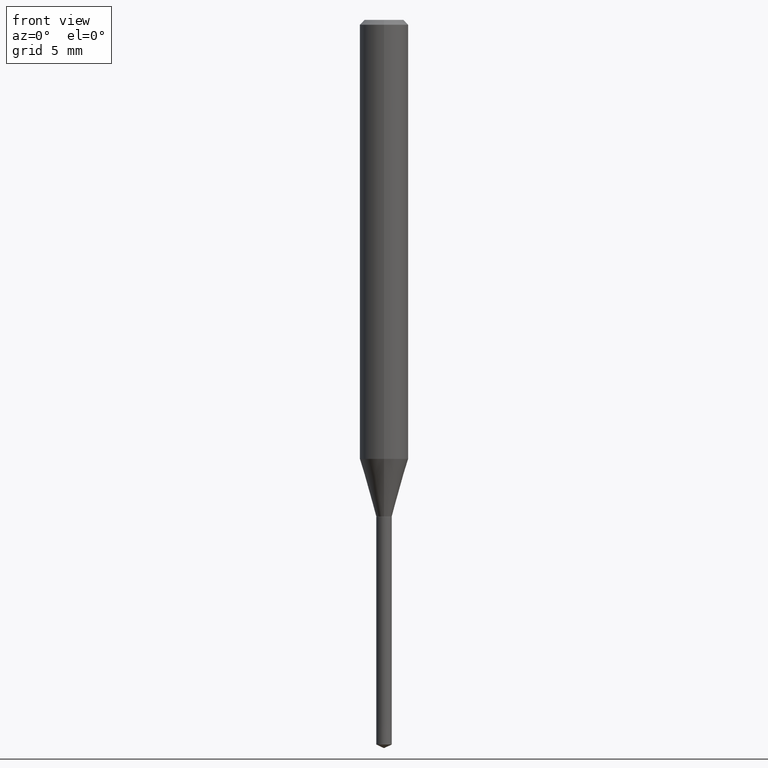
[diagram: clean part render]
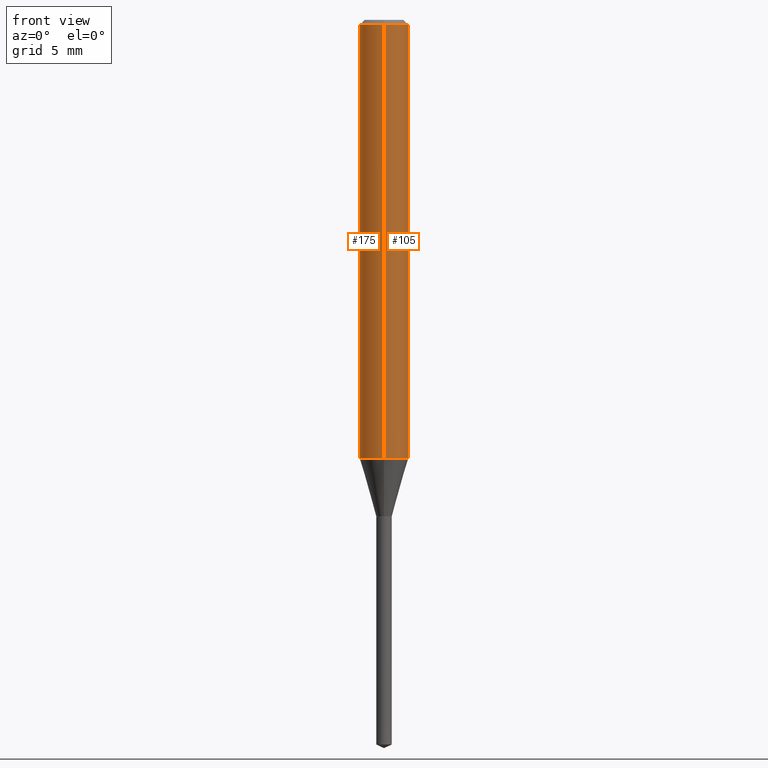
[diagram: same view with one multi-face feature highlighted, each face labeled with its STEP entity id]
A machine part, front view. The highlighted faces form ONE feature: a constant-radius fillet chain: 2 tangent blend faces with common blend radius 1.5 mm. The faces share edges in the B-rep.
Their STEP definitions:
[1] entity #175 (Cylinder):
#101=EDGE_CURVE('',#161,#103,#236,.T.);
#103=VERTEX_POINT('',#238);
#107=EDGE_CURVE('',#161,#135,#243,.T.);
#135=VERTEX_POINT('',#276);
#139=EDGE_CURVE('',#103,#183,#280,.T.);
#159=EDGE_CURVE('',#183,#135,#302,.T.);
#161=VERTEX_POINT('',#304);
#175=ADVANCED_FACE('',(#319),#320,.T.);
#183=VERTEX_POINT('',#329);
#236=LINE('',#383,#384);
#238=CARTESIAN_POINT('',(1.83690953073357E-016,-1.5,-0.300000000000001));
#243=CIRCLE('',#392,1.5);
#276=CARTESIAN_POINT('',(0.0,1.5,-27.125));
#280=CIRCLE('',#439,1.5);
#302=LINE('',#469,#470);
#304=CARTESIAN_POINT('',(1.83690953073357E-016,-1.5,-27.125));
#319=FACE_OUTER_BOUND('',#492,.T.);
#320=CYLINDRICAL_SURFACE('',#493,1.5);
#329=CARTESIAN_POINT('',(0.0,1.5,-0.300000000000001));
#383=CARTESIAN_POINT('',(1.83690953073357E-016,-1.5,-13.7125));
#384=VECTOR('',#542,1.0);
#392=AXIS2_PLACEMENT_3D('',#551,#552,#553);
#439=AXIS2_PLACEMENT_3D('',#602,#603,#604);
#469=CARTESIAN_POINT('',(-1.83690953073357E-016,1.5,-13.7125));
#470=VECTOR('',#637,1.0);
#492=EDGE_LOOP('',(#650,#651,#652,#653));
#493=AXIS2_PLACEMENT_3D('',#654,#655,#656);
#542=DIRECTION('',(-0.0,-0.0,1.0));
#551=CARTESIAN_POINT('',(0.0,0.0,-27.125));
#552=DIRECTION('',(0.0,0.0,-1.0));
#553=DIRECTION('',(0.0,1.0,0.0));
#602=CARTESIAN_POINT('',(0.0,0.0,-0.300000000000001));
#603=DIRECTION('',(0.0,0.0,-1.0));
#604=DIRECTION('',(0.0,1.0,0.0));
#637=DIRECTION('',(0.0,0.0,-1.0));
#650=ORIENTED_EDGE('',*,*,#159,.T.);
#651=ORIENTED_EDGE('',*,*,#107,.F.);
#652=ORIENTED_EDGE('',*,*,#101,.T.);
#653=ORIENTED_EDGE('',*,*,#139,.T.);
#654=CARTESIAN_POINT('',(0.0,0.0,-13.7125));
#655=DIRECTION('',(-0.0,-0.0,1.0));
#656=DIRECTION('',(0.0,1.0,0.0));
[2] entity #105 (Cylinder):
#101=EDGE_CURVE('',#161,#103,#236,.T.);
#103=VERTEX_POINT('',#238);
#105=ADVANCED_FACE('',(#240),#241,.T.);
#113=EDGE_CURVE('',#183,#103,#250,.T.);
#135=VERTEX_POINT('',#276);
#155=EDGE_CURVE('',#135,#161,#298,.T.);
#159=EDGE_CURVE('',#183,#135,#302,.T.);
#161=VERTEX_POINT('',#304);
#183=VERTEX_POINT('',#329);
#236=LINE('',#383,#384);
#238=CARTESIAN_POINT('',(1.83690953073357E-016,-1.5,-0.300000000000001));
#240=FACE_OUTER_BOUND('',#388,.T.);
#241=CYLINDRICAL_SURFACE('',#389,1.5);
#250=CIRCLE('',#402,1.5);
#276=CARTESIAN_POINT('',(0.0,1.5,-27.125));
#298=CIRCLE('',#463,1.5);
#302=LINE('',#469,#470);
#304=CARTESIAN_POINT('',(1.83690953073357E-016,-1.5,-27.125));
#329=CARTESIAN_POINT('',(0.0,1.5,-0.300000000000001));
#383=CARTESIAN_POINT('',(1.83690953073357E-016,-1.5,-13.7125));
#384=VECTOR('',#542,1.0);
#388=EDGE_LOOP('',(#544,#545,#546,#547));
#389=AXIS2_PLACEMENT_3D('',#548,#549,#550);
#402=AXIS2_PLACEMENT_3D('',#563,#564,#565);
#463=AXIS2_PLACEMENT_3D('',#631,#632,#633);
#469=CARTESIAN_POINT('',(-1.83690953073357E-016,1.5,-13.7125));
#470=VECTOR('',#637,1.0);
#542=DIRECTION('',(-0.0,-0.0,1.0));
#544=ORIENTED_EDGE('',*,*,#159,.F.);
#545=ORIENTED_EDGE('',*,*,#113,.T.);
#546=ORIENTED_EDGE('',*,*,#101,.F.);
#547=ORIENTED_EDGE('',*,*,#155,.F.);
#548=CARTESIAN_POINT('',(0.0,0.0,-13.7125));
#549=DIRECTION('',(-0.0,-0.0,1.0));
#550=DIRECTION('',(0.0,1.0,0.0));
#563=CARTESIAN_POINT('',(0.0,0.0,-0.300000000000001));
#564=DIRECTION('',(0.0,0.0,-1.0));
#565=DIRECTION('',(0.0,1.0,0.0));
#631=CARTESIAN_POINT('',(0.0,0.0,-27.125));
#632=DIRECTION('',(0.0,0.0,-1.0));
#633=DIRECTION('',(0.0,1.0,0.0));
#637=DIRECTION('',(0.0,0.0,-1.0));